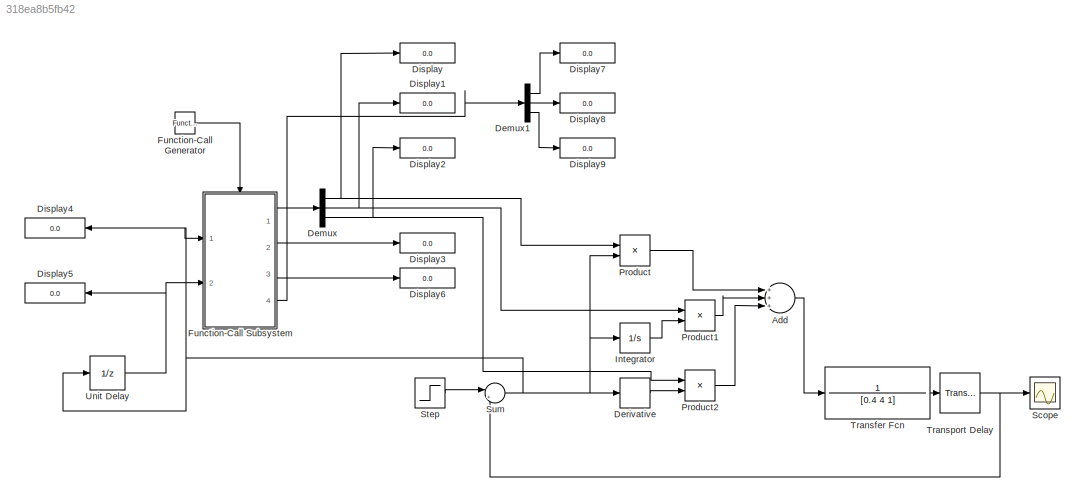
MODEL slx_318ea8b5fb42
KIND model
CONFIG AbsTol = auto
CONFIG EnableMultiTasking = off
CONFIG FixedStep = 0.1
CONFIG MaxStep = auto
CONFIG MinStep = auto
CONFIG RelTol = 1e-3
CONFIG SampleTimeConstraint = Unconstrained
CONFIG Solver = ode4
CONFIG SolverName = ode4
CONFIG StartTime = 0.0
CONFIG StopTime = 100
BLOCK [Sum] Add
  InputSameDT = off
  Inputs = +++
  OutDataTypeStr = Inherit: Inherit via internal rule
  Ports = [3, 1]
  SaturateOnIntegerOverflow = off
BLOCK [Demux] Demux
  DisplayOption = bar
  Outputs = 3
  Ports = [1, 3]
BLOCK [Demux] Demux1
  DisplayOption = bar
  Outputs = 3
  Ports = [1, 3]
BLOCK [Derivative] Derivative
BLOCK [Display] Display
  Decimation = 1
  Ports = [1]
BLOCK [Display] Display1
  Decimation = 1
  Ports = [1]
BLOCK [Display] Display2
  Decimation = 1
  Ports = [1]
BLOCK [Display] Display3
  Decimation = 1
  Ports = [1]
BLOCK [Display] Display4
  Decimation = 1
  Ports = [1]
BLOCK [Display] Display5
  Decimation = 1
  Ports = [1]
BLOCK [Display] Display6
  Decimation = 1
  Ports = [1]
BLOCK [Display] Display7
  Decimation = 1
  Ports = [1]
BLOCK [Display] Display8
  Decimation = 1
  Ports = [1]
BLOCK [Display] Display9
  Decimation = 1
  Ports = [1]
BLOCK [Reference] Function-Call Generator  REF=simulink/Ports &
Subsystems/Function-Call
Generator
  Ports = [0, 1]
  SourceBlock = simulink/Ports &\nSubsystems/Function-Call\nGenerator
  SourceProductBaseCode = SL
  SourceProductName = Simulink
  SourceType = Function-Call Generator
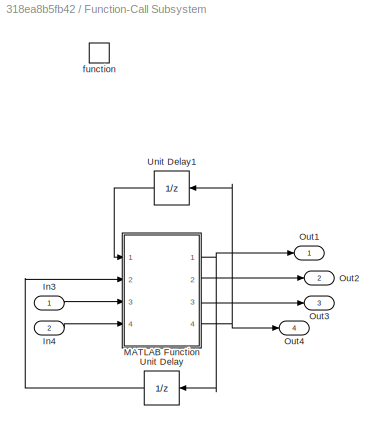
BLOCK [SubSystem] Function-Call Subsystem
  Ports = [2, 4, 0, 1]
  RequestExecContextInheritance = off
  TreatAsAtomicUnit = on
BLOCK [Inport] Function-Call Subsystem/In3
  IconDisplay = Port number
BLOCK [Inport] Function-Call Subsystem/In4
  IconDisplay = Port number
  Port = 2
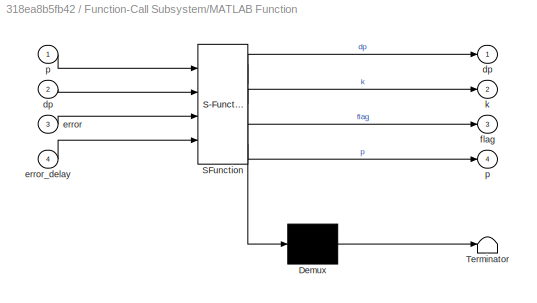
BLOCK [SubSystem] Function-Call Subsystem/MATLAB Function
  ErrorFcn = Stateflow.Translate.translate
  PermitHierarchicalResolution = ExplicitOnly
  Ports = [4, 4]
  RequestExecContextInheritance = off
  SFBlockType = MATLAB Function
  TreatAsAtomicUnit = on
BLOCK [Demux] Function-Call Subsystem/MATLAB Function/ Demux 
  Outputs = 1
  Ports = [1, 1]
BLOCK [S-Function] Function-Call Subsystem/MATLAB Function/ SFunction 
  EnableBusSupport = on
  FunctionName = sf_sfun
  PortCounts = [4 5]
  Ports = [4, 5]
  SFcnIsStateOwnerBlock = off
  SFunctionDeploymentMode = off
  Tag = Stateflow S-Function DYpid 2
BLOCK [Terminator] Function-Call Subsystem/MATLAB Function/ Terminator 
BLOCK [Outport] Function-Call Subsystem/MATLAB Function/dp
  IconDisplay = Port number
BLOCK [Inport] Function-Call Subsystem/MATLAB Function/dp 
  IconDisplay = Port number
  Port = 2
BLOCK [Inport] Function-Call Subsystem/MATLAB Function/error
  IconDisplay = Port number
  Port = 3
BLOCK [Inport] Function-Call Subsystem/MATLAB Function/error_delay
  IconDisplay = Port number
  Port = 4
BLOCK [Outport] Function-Call Subsystem/MATLAB Function/flag
  IconDisplay = Port number
  Port = 3
BLOCK [Outport] Function-Call Subsystem/MATLAB Function/k
  IconDisplay = Port number
  Port = 2
BLOCK [Outport] Function-Call Subsystem/MATLAB Function/p
  IconDisplay = Port number
  Port = 4
BLOCK [Inport] Function-Call Subsystem/MATLAB Function/p 
  IconDisplay = Port number
BLOCK [Outport] Function-Call Subsystem/Out1
  IconDisplay = Port number
BLOCK [Outport] Function-Call Subsystem/Out2
  IconDisplay = Port number
  Port = 2
BLOCK [Outport] Function-Call Subsystem/Out3
  IconDisplay = Port number
  Port = 3
BLOCK [Outport] Function-Call Subsystem/Out4
  IconDisplay = Port number
  Port = 4
BLOCK [UnitDelay] Function-Call Subsystem/Unit Delay
  InputProcessing = Elements as channels (sample based)
  SampleTime = -1
BLOCK [UnitDelay] Function-Call Subsystem/Unit Delay1
  InputProcessing = Elements as channels (sample based)
  SampleTime = -1
BLOCK [TriggerPort] Function-Call Subsystem/function
  Ports = []
  StatesWhenEnabling = held
  TriggerType = function-call
  VariantControl = Variant
BLOCK [Integrator] Integrator
  Ports = [1, 1]
BLOCK [Product] Product
  InputSameDT = off
  OutDataTypeStr = Inherit: Inherit via internal rule
  Ports = [2, 1]
  RndMeth = Floor
  SaturateOnIntegerOverflow = off
BLOCK [Product] Product1
  InputSameDT = off
  OutDataTypeStr = Inherit: Inherit via internal rule
  Ports = [2, 1]
  RndMeth = Floor
  SaturateOnIntegerOverflow = off
BLOCK [Product] Product2
  InputSameDT = off
  OutDataTypeStr = Inherit: Inherit via internal rule
  Ports = [2, 1]
  RndMeth = Floor
  SaturateOnIntegerOverflow = off
BLOCK [Scope] Scope
  Floating = off
  NumInputPorts = 1
  Ports = [1]
  ScopeSpecificationString = Simulink.scopes.TimeScopeBlockCfg('CurrentConfiguration', extmgr.ConfigurationSet(extmgr.Configuration('Core','General UI',true),extmgr.Configuration('Core','Source UI',true),extmgr.Configuration('Sources','WiredSimulink',true),extmgr.Configuration('Visuals','Time Domain',true,'SerializedDisplays',{struct('MinYLimReal','-1.24989','MaxYLimReal','11.24902','YLabelReal','','MinYLimMag','0.00000','Max...<+1432ch>
BLOCK [Step] Step
  After = 10
  SampleTime = 0
  Time = 0
BLOCK [Sum] Sum
  IconShape = round
  InputSameDT = off
  Inputs = |+-
  OutDataTypeStr = Inherit: Inherit via internal rule
  Ports = [2, 1]
  SaturateOnIntegerOverflow = off
BLOCK [TransferFcn] Transfer Fcn
  Denominator = [0.4 4 1]
  Numerator = 1
BLOCK [TransportDelay] Transport Delay
  DelayTime = 2
  Ports = [1, 1]
BLOCK [UnitDelay] Unit Delay
  InputProcessing = Elements as channels (sample based)
  SampleTime = -1
LINE Add:1 -> Transfer Fcn:1
LINE Demux1:1 -> Display7:1
LINE Demux1:2 -> Display8:1
LINE Demux1:3 -> Display9:1
NET Demux:1 -> Display:1, Product:1
NET Demux:2 -> Display1:1, Product1:1
NET Demux:3 -> Display2:1, Product2:1
LINE Derivative:1 -> Product2:2
LINE Function-Call Generator:1 -> Function-Call Subsystem:trigger
LINE Function-Call Subsystem/In3:1 -> Function-Call Subsystem/MATLAB Function:3
LINE Function-Call Subsystem/In4:1 -> Function-Call Subsystem/MATLAB Function:4
NET Function-Call Subsystem/MATLAB Function:1 -> Function-Call Subsystem/Out1:1, Function-Call Subsystem/Unit Delay:1
LINE Function-Call Subsystem/MATLAB Function:2 -> Function-Call Subsystem/Out2:1
LINE Function-Call Subsystem/MATLAB Function:3 -> Function-Call Subsystem/Out3:1
NET Function-Call Subsystem/MATLAB Function:4 -> Function-Call Subsystem/Out4:1, Function-Call Subsystem/Unit Delay1:1
LINE Function-Call Subsystem/Unit Delay1:1 -> Function-Call Subsystem/MATLAB Function:1
LINE Function-Call Subsystem/Unit Delay:1 -> Function-Call Subsystem/MATLAB Function:2
LINE Function-Call Subsystem:1 -> Demux:1
LINE Function-Call Subsystem:2 -> Display3:1
LINE Function-Call Subsystem:3 -> Display6:1
LINE Function-Call Subsystem:4 -> Demux1:1
LINE Integrator:1 -> Product1:2
LINE Product1:1 -> Add:2
LINE Product2:1 -> Add:3
LINE Product:1 -> Add:1
LINE Step:1 -> Sum:1
NET Sum:1 -> Derivative:1, Display4:1, Function-Call Subsystem:1, Integrator:1, Product:2, Unit Delay:1
LINE Transfer Fcn:1 -> Transport Delay:1
NET Transport Delay:1 -> Scope:1, Sum:2
NET Unit Delay:1 -> Display5:1, Function-Call Subsystem:2
note: NET lines group one-source signal fan-out (src -> all destinations, sorted); 1:1 wires keep LINE
CHART Function-Call
Subsystem/MATLAB Function states=1 transitions=1
  STATE_LABEL 'eML_blk_kernel()'
  STATE_LABEL 'SCRIPT:\nfunction [dp,k,flag,p]  = fcn( p,dp,error,error_delay)\nerror = abs(error);\nerror_delay = abs(error_delay);\n\ntol = 0.2;\ncondi = 1;\nflag =0;\nk = 0;\n% persistent k;\n% if isempty(k)\n%    k = 0;\n% end\n\n\n\n%  while condi ==1\n\n\n     for i = 1:3\n         p(i)= p(i)+ dp(i);\n         if error < error_delay\n             flag = 1;\n             error_delay = error;\n             dp(i) = dp(i)*1.1;\n      ...<+477ch>'
